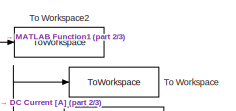
[diagram: root canvas - part 1/3, top right region]
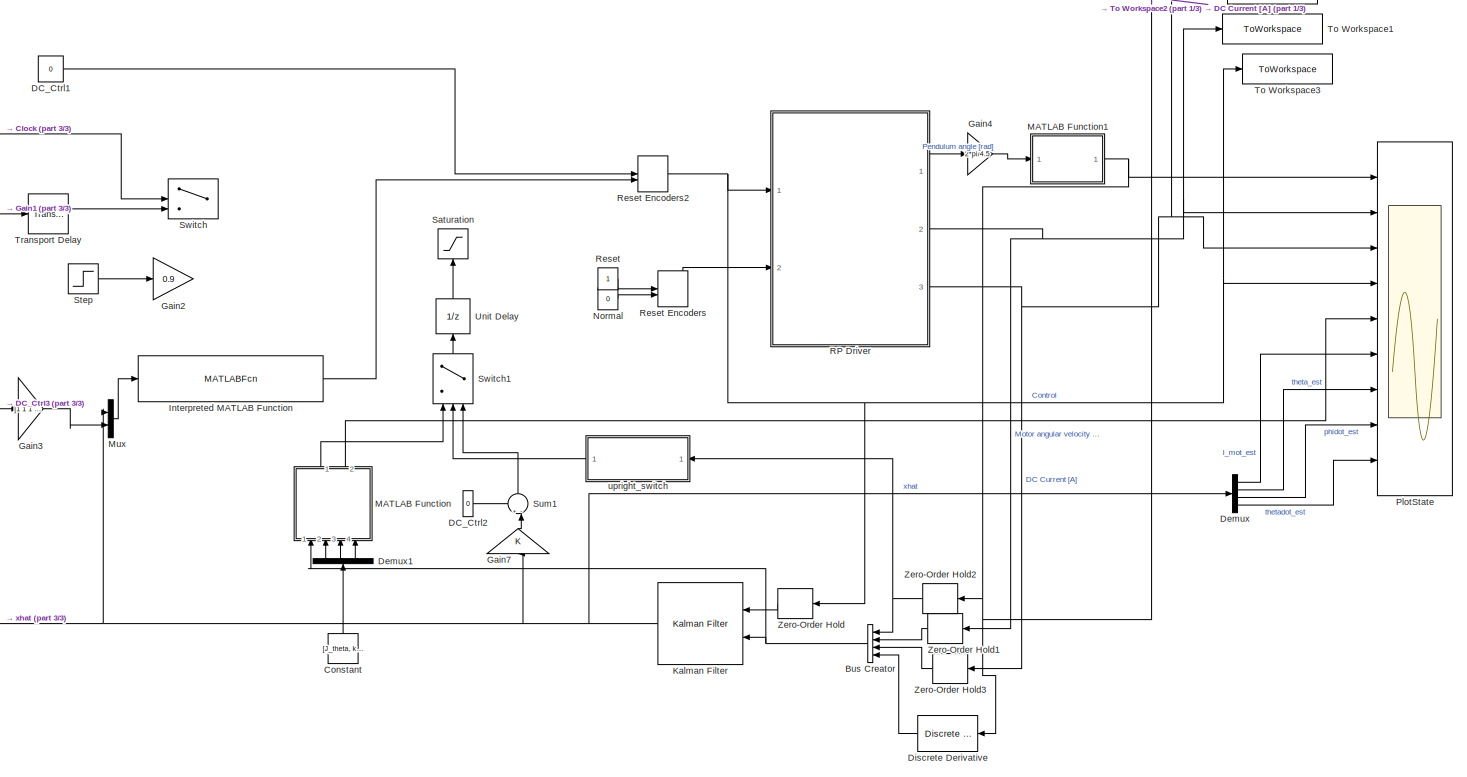
[diagram: root canvas - part 2/3, most of the canvas]
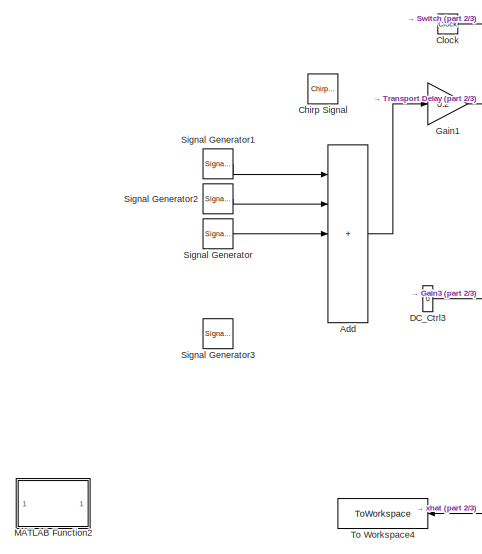
[diagram: root canvas - part 3/3, middle left region]
MODEL slx_35e0906fa4c0
KIND model
CONFIG AbsTol = auto
CONFIG EnableMultiTasking = on
CONFIG FixedStep = h
CONFIG InitFcn = hwinit
CONFIG MaxStep = auto
CONFIG MinStep = auto
CONFIG PreLoadFcn = warning('off','MATLAB:dispatcher:InexactMatch');\n\n
CONFIG RelTol = 1e-3
CONFIG SampleTimeConstraint = Unconstrained
CONFIG SolverName = FixedStepDiscrete
CONFIG StartTime = 0.0
CONFIG StopTime = 50
BLOCK [Sum] Add
  IconShape = rectangular
  Inputs = +++++
  Ports = [5, 1]
BLOCK [BusCreator] Bus Creator
  DisplayOption = bar
  InheritFromInputs = on
  Inputs = 4
  NameLocation = top
  Ports = [4, 1]
BLOCK [Reference] Chirp Signal  REF=simulink/Sources/Chirp Signal
  Ports = [0, 1]
  SourceBlock = simulink/Sources/Chirp Signal
  SourceProductBaseCode = SL
  SourceType = chirp
BLOCK [Clock] Clock
BLOCK [Constant] Constant
  NameLocation = right
  Value = [J_theta, kt, mgL]
BLOCK [Constant] DC_Ctrl1
  Value = 0
BLOCK [Constant] DC_Ctrl2
  Value = 0
BLOCK [Constant] DC_Ctrl3
  Value = 0
BLOCK [Demux] Demux
  Ports = [1, 4]
BLOCK [Demux] Demux1
  NameLocation = right
  Outputs = 3
  Ports = [1, 3]
BLOCK [Reference] Discrete Derivative  REF=simulink/Discrete/Discrete Derivative
  NameLocation = top
  Ports = [1, 1]
  SourceBlock = simulink/Discrete/Discrete Derivative
  SourceProductBaseCode = SL
  SourceType = Discrete Derivative
BLOCK [Gain] Gain1
  Gain = 0.2
BLOCK [Gain] Gain2
  Gain = 0.9
BLOCK [Gain] Gain3
  Gain = [1 1 1 1]
  Multiplication = Matrix(u*K)
BLOCK [Gain] Gain4
  Gain = 2*pi/4.5
BLOCK [Gain] Gain7
  Gain = K
  Multiplication = Matrix(K*u)
  NameLocation = right
BLOCK [MATLABFcn] Interpreted MATLAB Function
  MATLABFcn = mpc_block
  OutputDimensions = 1
  OutputSignalType = real
  Ports = [1, 1]
BLOCK [Reference] Kalman Filter  REF=ctrlSharedLib/Kalman Filter
  NameLocation = top
  Ports = [2, 1]
  SourceBlock = ctrlSharedLib/Kalman Filter
  SourceProductBaseCode = CT,ID
  SourceType = ctrlKalmanFilter
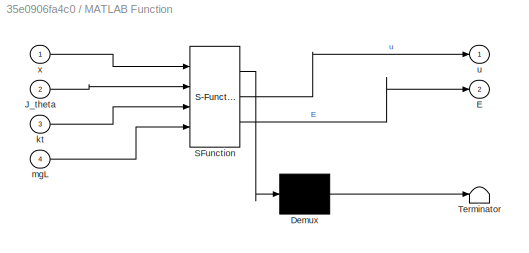
BLOCK [SubSystem] MATLAB Function
  ErrorFcn = Stateflow.Translate.translate
  NameLocation = right
  PermitHierarchicalResolution = ExplicitOnly
  Ports = [4, 2]
  RequestExecContextInheritance = off
  SFBlockType = MATLAB Function
  TreatAsAtomicUnit = on
BLOCK [Demux] MATLAB Function/ Demux 
  Outputs = 1
  Ports = [1, 1]
BLOCK [S-Function] MATLAB Function/ SFunction 
  EnableBusSupport = on
  FunctionName = sf_sfun
  PortCounts = [4 3]
  Ports = [4, 3]
  SFcnIsStateOwnerBlock = off
  SFunctionDeploymentMode = off
  Tag = Stateflow S-Function 2
BLOCK [Terminator] MATLAB Function/ Terminator 
BLOCK [Outport] MATLAB Function/E
  Port = 2
BLOCK [Inport] MATLAB Function/J_theta
  Port = 2
BLOCK [Inport] MATLAB Function/kt
  Port = 3
BLOCK [Inport] MATLAB Function/mgL
  Port = 4
BLOCK [Outport] MATLAB Function/u
BLOCK [Inport] MATLAB Function/x
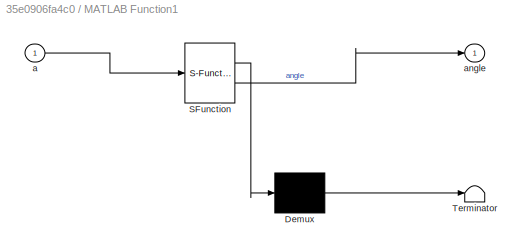
BLOCK [SubSystem] MATLAB Function1
  ErrorFcn = Stateflow.Translate.translate
  PermitHierarchicalResolution = ExplicitOnly
  Ports = [1, 1]
  RequestExecContextInheritance = off
  SFBlockType = MATLAB Function
  TreatAsAtomicUnit = on
BLOCK [Demux] MATLAB Function1/ Demux 
  Outputs = 1
  Ports = [1, 1]
BLOCK [S-Function] MATLAB Function1/ SFunction 
  EnableBusSupport = on
  FunctionName = sf_sfun
  PortCounts = [1 2]
  Ports = [1, 2]
  SFcnIsStateOwnerBlock = off
  SFunctionDeploymentMode = off
  Tag = Stateflow S-Function 1
BLOCK [Terminator] MATLAB Function1/ Terminator 
BLOCK [Inport] MATLAB Function1/a
BLOCK [Outport] MATLAB Function1/angle
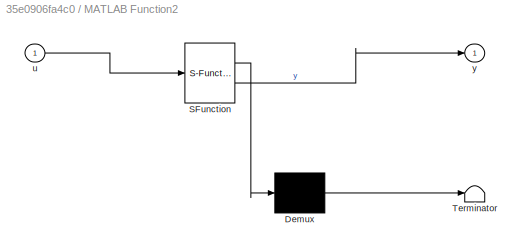
BLOCK [SubSystem] MATLAB Function2
  ErrorFcn = Stateflow.Translate.translate
  PermitHierarchicalResolution = ExplicitOnly
  Ports = [1, 1]
  RequestExecContextInheritance = off
  SFBlockType = MATLAB Function
  TreatAsAtomicUnit = on
BLOCK [Demux] MATLAB Function2/ Demux 
  Outputs = 1
  Ports = [1, 1]
BLOCK [S-Function] MATLAB Function2/ SFunction 
  EnableBusSupport = off
  FunctionName = sf_sfun
  PortCounts = [1 2]
  Ports = [1, 2]
  SFcnIsStateOwnerBlock = off
  SFunctionDeploymentMode = off
  Tag = Stateflow S-Function 3
BLOCK [Terminator] MATLAB Function2/ Terminator 
BLOCK [Inport] MATLAB Function2/u
BLOCK [Outport] MATLAB Function2/y
BLOCK [Mux] Mux
  DisplayOption = bar
  Inputs = 2
  Ports = [2, 1]
BLOCK [Constant] Normal
  Value = 0
BLOCK [Scope] PlotState
  Floating = off
  NumInputPorts = 9
  Ports = [9]
  ScopeSpecificationString = Simulink.scopes.TimeScopeBlockCfg('CurrentConfiguration', extmgr.ConfigurationSet(extmgr.Configuration('Core','General UI',true),extmgr.Configuration('Core','Source UI',true),extmgr.Configuration('Sources','WiredSimulink',true,'DataLoggingVariableName','StateData','DataLoggingSaveFormat','StructureWithTime','DataLoggingMaxPoints','12000','DataLoggingDecimation','1','DataLoggingDecimateData',true),...<+9282ch>
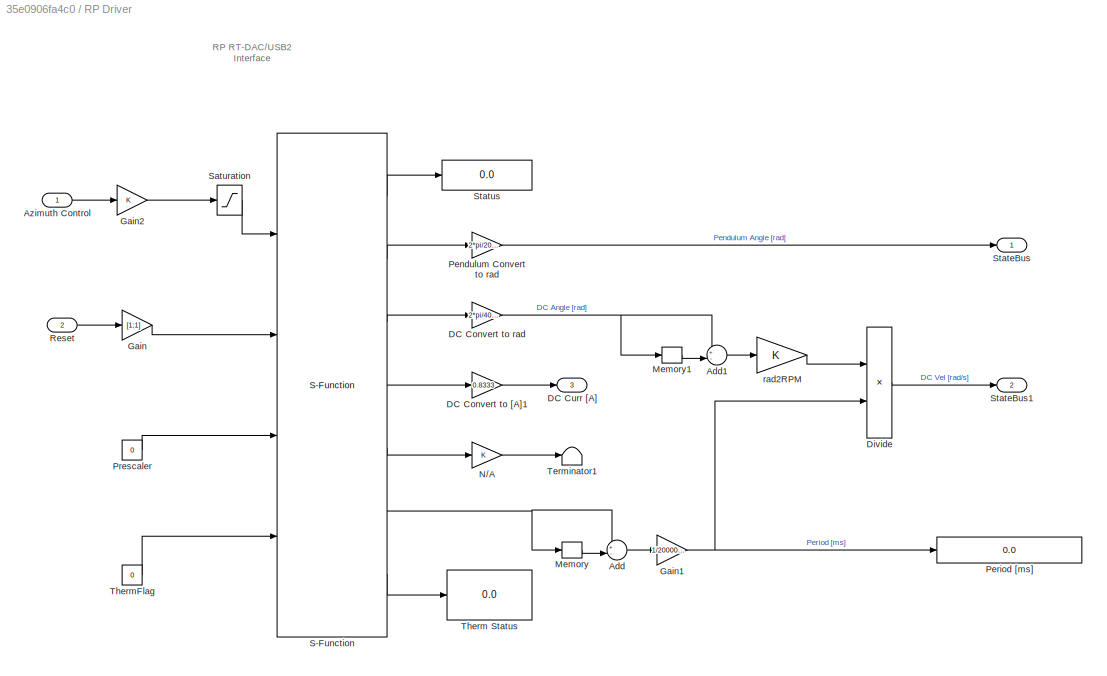
BLOCK [SubSystem] RP Driver
  Ports = [2, 3]
  RequestExecContextInheritance = off
BLOCK [Sum] RP Driver/Add
  Inputs = +-|
  Ports = [2, 1]
BLOCK [Sum] RP Driver/Add1
  Inputs = +-|
  Ports = [2, 1]
BLOCK [Inport] RP Driver/Azimuth Control
BLOCK [Gain] RP Driver/DC Convert to [A]1
  Gain = 0.8333
  OutDataTypeStr = Inherit: Same as input
  ParamDataTypeStr = Inherit: Same as input
  SaturateOnIntegerOverflow = on
BLOCK [Gain] RP Driver/DC Convert to rad
  Gain = 2*pi/4096
  OutDataTypeStr = Inherit: Same as input
  ParamDataTypeStr = Inherit: Same as input
  SaturateOnIntegerOverflow = on
BLOCK [Outport] RP Driver/DC Curr [A]
  Port = 3
  VectorParamsAs1DForOutWhenUnconnected = off
BLOCK [Product] RP Driver/Divide
  Inputs = */
  Ports = [2, 1]
BLOCK [Gain] RP Driver/Gain
  Gain = [1;1]
BLOCK [Gain] RP Driver/Gain1
  Gain = 1/20000000
BLOCK [Gain] RP Driver/Gain2
BLOCK [Memory] RP Driver/Memory
  NameLocation = top
BLOCK [Memory] RP Driver/Memory1
  NameLocation = top
BLOCK [Gain] RP Driver/N//A
  OutDataTypeStr = Inherit: Same as input
  ParamDataTypeStr = Inherit: Same as input
  SaturateOnIntegerOverflow = on
BLOCK [Gain] RP Driver/Pendulum Convert to rad
  Gain = 2*pi/20000
  OutDataTypeStr = Inherit: Same as input
  ParamDataTypeStr = Inherit: Same as input
  SaturateOnIntegerOverflow = on
BLOCK [Display] RP Driver/Period [ms]
  Decimation = 1
  Format = long
  Ports = [1]
BLOCK [Constant] RP Driver/Prescaler
  Value = 0
BLOCK [Inport] RP Driver/Reset
  Port = 2
BLOCK [S-Function] RP Driver/S-Function
  EnableBusSupport = off
  FunctionName = rtdacusb2_rpend_dd
  Parameters = 1, h
  Ports = [4, 7]
  SFcnIsStateOwnerBlock = off
  SFunctionDeploymentMode = off
BLOCK [Saturate] RP Driver/Saturation
  LowerLimit = -1
  UpperLimit = 1
BLOCK [Outport] RP Driver/StateBus
  VectorParamsAs1DForOutWhenUnconnected = off
BLOCK [Outport] RP Driver/StateBus1
  Port = 2
  VectorParamsAs1DForOutWhenUnconnected = off
BLOCK [Display] RP Driver/Status
  Decimation = 1
  Ports = [1]
BLOCK [Terminator] RP Driver/Terminator1
BLOCK [Display] RP Driver/Therm Status
  Decimation = 1
  Ports = [1]
BLOCK [Constant] RP Driver/ThermFlag
  Value = 0
BLOCK [Gain] RP Driver/rad2RPM
  OutDataTypeStr = Inherit: Same as input
  ParamDataTypeStr = Inherit: Same as input
  SaturateOnIntegerOverflow = on
BLOCK [Constant] Reset
  NameLocation = top
BLOCK [ManualSwitch] Reset Encoders
  CurrentSetting = 0
BLOCK [ManualSwitch] Reset Encoders2
  CurrentSetting = 0
BLOCK [Saturate] Saturation
  LowerLimit = -1
  NameLocation = right
  UpperLimit = 1
BLOCK [SignalGenerator] Signal Generator
  Amplitude = 0.3
  Frequency = 1/2
  Ports = [0, 1]
  WaveForm = square
BLOCK [SignalGenerator] Signal Generator1
  Amplitude = 0.3
  Frequency = 1/5
  Ports = [0, 1]
  WaveForm = square
BLOCK [SignalGenerator] Signal Generator2
  Amplitude = 0.5
  Frequency = 1/4
  Ports = [0, 1]
  WaveForm = square
BLOCK [SignalGenerator] Signal Generator3
  Amplitude = 0.6
  Frequency = 3.29
  Ports = [0, 1]
  WaveForm = square
BLOCK [Step] Step
  SampleTime = 0
BLOCK [Sum] Sum1
  Inputs = +-|
  NameLocation = right
  Ports = [2, 1]
BLOCK [Switch] Switch
  Criteria = u2 > Threshold
  InputSameDT = off
  SaturateOnIntegerOverflow = off
  Threshold = 40
BLOCK [Switch] Switch1
  Criteria = u2 ~= 0
  InputSameDT = off
  NameLocation = right
  SaturateOnIntegerOverflow = off
  Threshold = 40
BLOCK [ToWorkspace] To Workspace
  FixptAsFi = on
  MaxDataPoints = inf
  Ports = [1]
  SampleTime = -1
  VariableName = I_mot
BLOCK [ToWorkspace] To Workspace1
  FixptAsFi = on
  MaxDataPoints = inf
  Ports = [1]
  SampleTime = -1
  VariableName = phidot
BLOCK [ToWorkspace] To Workspace2
  FixptAsFi = on
  MaxDataPoints = inf
  Ports = [1]
  SampleTime = -1
  VariableName = theta
BLOCK [ToWorkspace] To Workspace3
  FixptAsFi = on
  MaxDataPoints = inf
  Ports = [1]
  SampleTime = -1
  VariableName = u
BLOCK [ToWorkspace] To Workspace4
  FixptAsFi = on
  MaxDataPoints = inf
  NameLocation = top
  Ports = [1]
  SampleTime = -1
  VariableName = xhat
BLOCK [TransportDelay] Transport Delay
  Ports = [1, 1]
BLOCK [UnitDelay] Unit Delay
  HasFrameUpgradeWarning = on
  NameLocation = right
  SampleTime = -1
BLOCK [ZeroOrderHold] Zero-Order Hold
  NameLocation = top
  SampleTime = h
BLOCK [ZeroOrderHold] Zero-Order Hold1
  NameLocation = top
  SampleTime = h
BLOCK [ZeroOrderHold] Zero-Order Hold2
  NameLocation = top
  SampleTime = h
BLOCK [ZeroOrderHold] Zero-Order Hold3
  NameLocation = top
  SampleTime = h
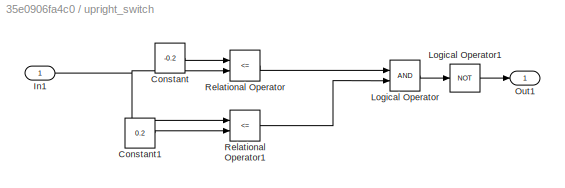
BLOCK [SubSystem] upright_switch
  NameLocation = top
  Ports = [1, 1]
  RequestExecContextInheritance = off
BLOCK [Constant] upright_switch/Constant
  Value = -0.2
BLOCK [Constant] upright_switch/Constant1
  Value = 0.2
BLOCK [Inport] upright_switch/In1
BLOCK [Logic] upright_switch/Logical Operator
  AllPortsSameDT = off
  OutDataTypeStr = boolean
  Ports = [2, 1]
BLOCK [Logic] upright_switch/Logical Operator1
  AllPortsSameDT = off
  Operator = NOT
  OutDataTypeStr = boolean
  Ports = [1, 1]
BLOCK [Outport] upright_switch/Out1
BLOCK [RelationalOperator] upright_switch/Relational Operator
  InputSameDT = off
  Operator = <=
  OutDataTypeStr = boolean
  Ports = [2, 1]
  RndMeth = Simplest
BLOCK [RelationalOperator] upright_switch/Relational Operator1
  InputSameDT = off
  Operator = <=
  OutDataTypeStr = boolean
  Ports = [2, 1]
  RndMeth = Simplest
ANNOTATION RP Driver: RP RT-DAC/USB2 Interface
LINE Add:1 -> Gain1:1
NET Bus Creator:1 -> Kalman Filter:2, MATLAB Function:1
LINE Clock:1 -> Switch:2
LINE Constant:1 -> Demux1:1
LINE DC_Ctrl1:1 -> Reset Encoders2:1
LINE DC_Ctrl2:1 -> Sum1:1
LINE DC_Ctrl3:1 -> Gain3:1
LINE Demux1:1 -> MATLAB Function:2
LINE Demux1:2 -> MATLAB Function:3
LINE Demux1:3 -> MATLAB Function:4
LINE Demux:1 -> PlotState:6
LINE Demux:2 -> PlotState:7
LINE Demux:3 -> PlotState:8
LINE Demux:4 -> PlotState:9
LINE Discrete Derivative:1 -> Bus Creator:4
LINE Gain1:1 -> Transport Delay:1
LINE Gain3:1 -> Mux:2
LINE Gain4:1 -> MATLAB Function1:1
LINE Gain7:1 -> Sum1:2
LINE Interpreted MATLAB Function:1 -> Reset Encoders2:2
NET Kalman Filter:1 -> Demux:1, Gain7:1, Mux:1, To Workspace4:1
NET MATLAB Function1:1 -> Discrete Derivative:1, PlotState:1, To Workspace2:1, Zero-Order Hold2:1
LINE MATLAB Function:1 -> Switch1:1
LINE MATLAB Function:2 -> PlotState:5
LINE Mux:1 -> Interpreted MATLAB Function:1
LINE Normal:1 -> Reset Encoders:2
LINE RP Driver/Add1:1 -> RP Driver/rad2RPM:1
LINE RP Driver/Add:1 -> RP Driver/Gain1:1
LINE RP Driver/Azimuth Control:1 -> RP Driver/Gain2:1
LINE RP Driver/DC Convert to [A]1:1 -> RP Driver/DC Curr [A]:1
NET RP Driver/DC Convert to rad:1 -> RP Driver/Add1:1, RP Driver/Memory1:1
LINE RP Driver/Divide:1 -> RP Driver/StateBus1:1
NET RP Driver/Gain1:1 -> RP Driver/Divide:2, RP Driver/Period [ms]:1
LINE RP Driver/Gain2:1 -> RP Driver/Saturation:1
LINE RP Driver/Gain:1 -> RP Driver/S-Function:2
LINE RP Driver/Memory1:1 -> RP Driver/Add1:2
LINE RP Driver/Memory:1 -> RP Driver/Add:2
LINE RP Driver/N//A:1 -> RP Driver/Terminator1:1
LINE RP Driver/Pendulum Convert to rad:1 -> RP Driver/StateBus:1
LINE RP Driver/Prescaler:1 -> RP Driver/S-Function:3
LINE RP Driver/Reset:1 -> RP Driver/Gain:1
LINE RP Driver/S-Function:1 -> RP Driver/Status:1
LINE RP Driver/S-Function:2 -> RP Driver/Pendulum Convert to rad:1
LINE RP Driver/S-Function:3 -> RP Driver/DC Convert to rad:1
LINE RP Driver/S-Function:4 -> RP Driver/DC Convert to [A]1:1
LINE RP Driver/S-Function:5 -> RP Driver/N//A:1
NET RP Driver/S-Function:6 -> RP Driver/Add:1, RP Driver/Memory:1
LINE RP Driver/S-Function:7 -> RP Driver/Therm Status:1
LINE RP Driver/Saturation:1 -> RP Driver/S-Function:1
LINE RP Driver/ThermFlag:1 -> RP Driver/S-Function:4
LINE RP Driver/rad2RPM:1 -> RP Driver/Divide:1
LINE RP Driver:1 -> Gain4:1
NET RP Driver:2 -> PlotState:2, To Workspace1:1, Zero-Order Hold1:1
NET RP Driver:3 -> PlotState:3, To Workspace:1, Zero-Order Hold3:1
NET Reset Encoders2:1 -> PlotState:4, RP Driver:1, To Workspace3:1, Zero-Order Hold:1
LINE Reset Encoders:1 -> RP Driver:2
LINE Reset:1 -> Reset Encoders:1
LINE Signal Generator1:1 -> Add:1
LINE Signal Generator2:1 -> Add:2
LINE Signal Generator:1 -> Add:3
LINE Step:1 -> Gain2:1
LINE Sum1:1 -> Switch1:3
LINE Switch1:1 -> Unit Delay:1
LINE Transport Delay:1 -> Switch:3
LINE Unit Delay:1 -> Saturation:1
LINE Zero-Order Hold1:1 -> Bus Creator:2
NET Zero-Order Hold2:1 -> Bus Creator:1, upright_switch:1
LINE Zero-Order Hold3:1 -> Bus Creator:3
LINE Zero-Order Hold:1 -> Kalman Filter:1
LINE upright_switch/Constant1:1 -> upright_switch/Relational Operator1:2
LINE upright_switch/Constant:1 -> upright_switch/Relational Operator:1
NET upright_switch/In1:1 -> upright_switch/Relational Operator1:1, upright_switch/Relational Operator:2
LINE upright_switch/Logical Operator1:1 -> upright_switch/Out1:1
LINE upright_switch/Logical Operator:1 -> upright_switch/Logical Operator1:1
LINE upright_switch/Relational Operator1:1 -> upright_switch/Logical Operator:2
LINE upright_switch/Relational Operator:1 -> upright_switch/Logical Operator:1
LINE upright_switch:1 -> Switch1:2
note: NET lines group one-source signal fan-out (src -> all destinations, sorted); 1:1 wires keep LINE
CHART MATLAB Function1 states=1 transitions=1
  STATE_LABEL 'eML_blk_kernel()'
  STATE_LABEL 'SCRIPT:\nfunction angle = fcn(a)\n    b = a + pi;\n    angle = mod(b, 2*pi);\n    angle = angle - pi;\n'
CHART MATLAB Function states=1 transitions=1
  STATE_LABEL 'eML_blk_kernel()'
  STATE_LABEL 'SCRIPT:\nfunction [u, E] = swingup(x, J_theta, kt, mgL)\n    E0 = 0.75;\n    theta = x(1);\n    thetadot = x(4);\n    \n    e_kin = 0.5 * J_theta * thetadot * thetadot;\n    e_pot = 1.5 * mgL * (cos(theta) - 1);\n    E = e_kin + e_pot;\n%     E = -1;\n%     E = min(E, 0);\n\n    sign_term = sign(thetadot * cos(theta));\n    k = 1;\n    u = 1/kt * (E - E0) * sign_term;\nend\n\n'
CHART MATLAB Function2 states=1 transitions=1
  STATE_LABEL 'eML_blk_kernel()'
  STATE_LABEL 'SCRIPT:\nfunction y = fcn(u)\n\ny = u;\n'
CHART  states=0 transitions=0
CHART  states=0 transitions=0
CHART  states=0 transitions=0
